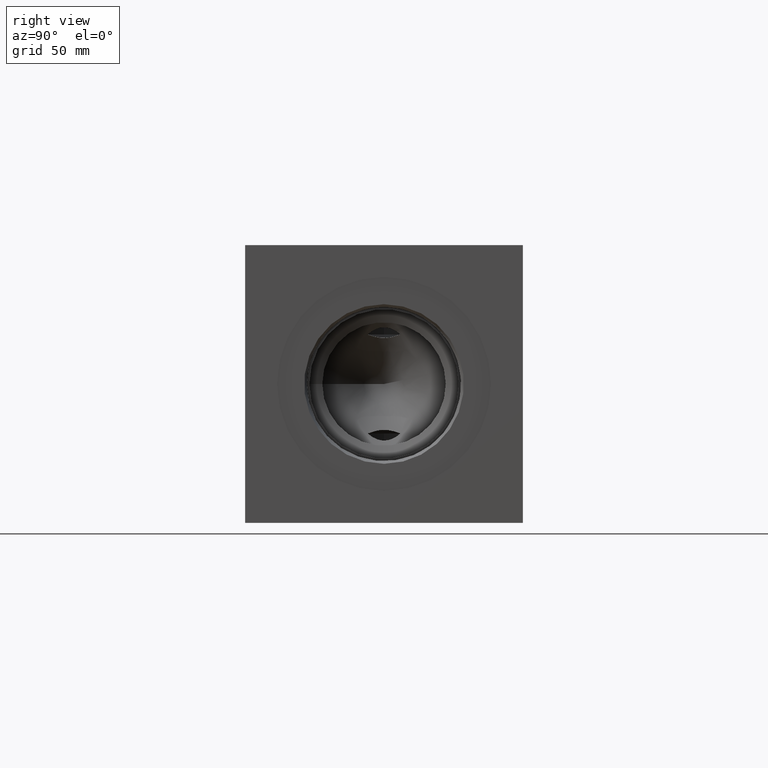
[diagram: clean part render]
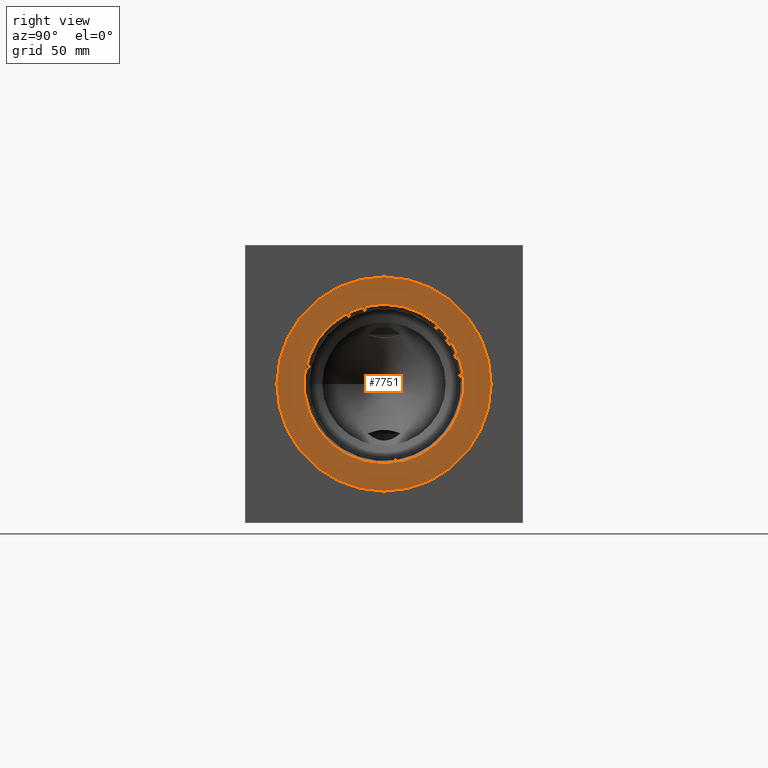
[diagram: same view with one face highlighted and labeled with its STEP entity id]
A machine part, right view. The second image highlights one B-rep face of the part: STEP entity #7751.
In plain terms, the highlighted planar face has unit normal (-1, 0, 0).
Its self-contained STEP definition (entity closure, byte-faithful):
#182=CIRCLE('',#8173,44.069);
#183=CIRCLE('',#8174,44.069);
#184=CIRCLE('',#8176,32.8549);
#185=CIRCLE('',#8177,32.8549);
#252=FACE_BOUND('',#1355,.T.);
#920=FACE_OUTER_BOUND('',#1354,.T.);
#1354=EDGE_LOOP('',(#6710,#6711));
#1355=EDGE_LOOP('',(#6712,#6713));
#3577=VERTEX_POINT('',#13210);
#3578=VERTEX_POINT('',#13212);
#3579=VERTEX_POINT('',#13216);
#3580=VERTEX_POINT('',#13217);
#4637=EDGE_CURVE('',#3577,#3578,#182,.T.);
#4638=EDGE_CURVE('',#3578,#3577,#183,.T.);
#4639=EDGE_CURVE('',#3579,#3580,#184,.T.);
#4640=EDGE_CURVE('',#3580,#3579,#185,.T.);
#6710=ORIENTED_EDGE('',*,*,#4638,.F.);
#6711=ORIENTED_EDGE('',*,*,#4637,.F.);
#6712=ORIENTED_EDGE('',*,*,#4639,.T.);
#6713=ORIENTED_EDGE('',*,*,#4640,.T.);
#7066=PLANE('',#8175);
#7751=ADVANCED_FACE('',(#920,#252),#7066,.F.);
#8173=AXIS2_PLACEMENT_3D('',#13213,#9727,#9728);
#8174=AXIS2_PLACEMENT_3D('',#13214,#9729,#9730);
#8175=AXIS2_PLACEMENT_3D('',#13215,#9731,#9732);
#8176=AXIS2_PLACEMENT_3D('',#13218,#9733,#9734);
#8177=AXIS2_PLACEMENT_3D('',#13219,#9735,#9736);
#9727=DIRECTION('center_axis',(-1.,0.,0.));
#9728=DIRECTION('ref_axis',(0.,0.,1.));
#9729=DIRECTION('center_axis',(-1.,0.,0.));
#9730=DIRECTION('ref_axis',(0.,0.,1.));
#9731=DIRECTION('center_axis',(-1.,0.,0.));
#9732=DIRECTION('ref_axis',(0.,0.,1.));
#9733=DIRECTION('center_axis',(-1.,0.,0.));
#9734=DIRECTION('ref_axis',(0.,0.,1.));
#9735=DIRECTION('center_axis',(-1.,0.,0.));
#9736=DIRECTION('ref_axis',(0.,0.,1.));
#13210=CARTESIAN_POINT('',(253.2126,57.15,101.219));
#13212=CARTESIAN_POINT('',(253.2126,57.15,13.081));
#13213=CARTESIAN_POINT('Origin',(253.2126,57.15,57.15));
#13214=CARTESIAN_POINT('Origin',(253.2126,57.15,57.15));
#13215=CARTESIAN_POINT('Origin',(253.2126,57.15,24.2951));
#13216=CARTESIAN_POINT('',(253.2126,57.15,24.2951));
#13217=CARTESIAN_POINT('',(253.2126,57.15,90.0049));
#13218=CARTESIAN_POINT('Origin',(253.2126,57.15,57.15));
#13219=CARTESIAN_POINT('Origin',(253.2126,57.15,57.15));